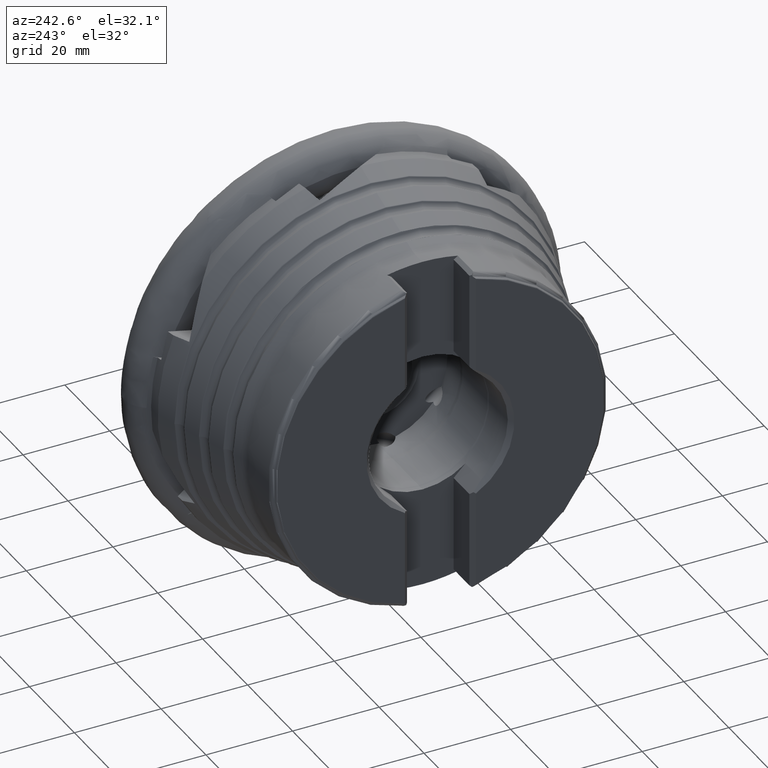
[diagram: clean part render]
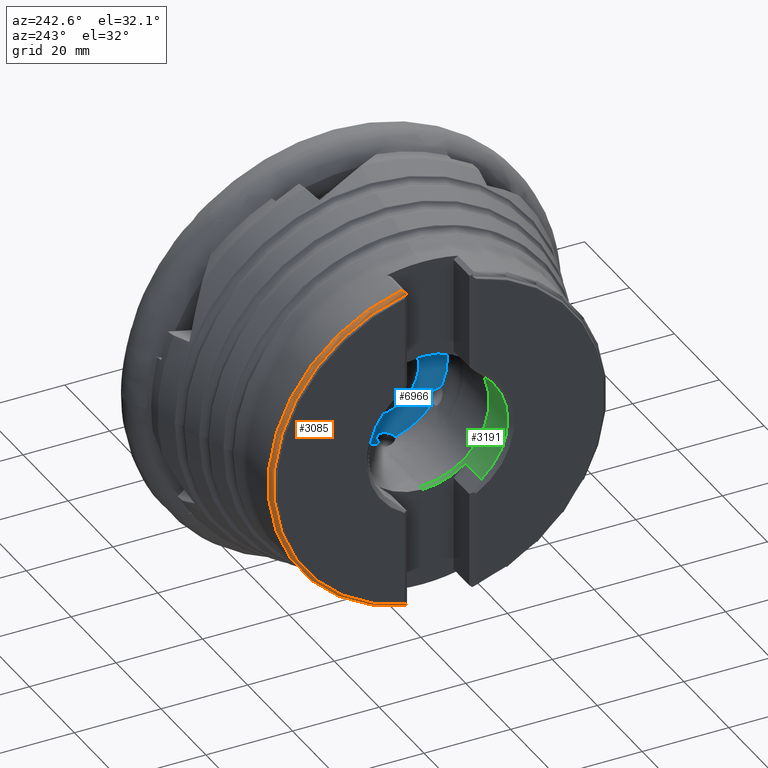
[diagram: same view with three faces highlighted in distinct colors, each labeled with its STEP entity id]
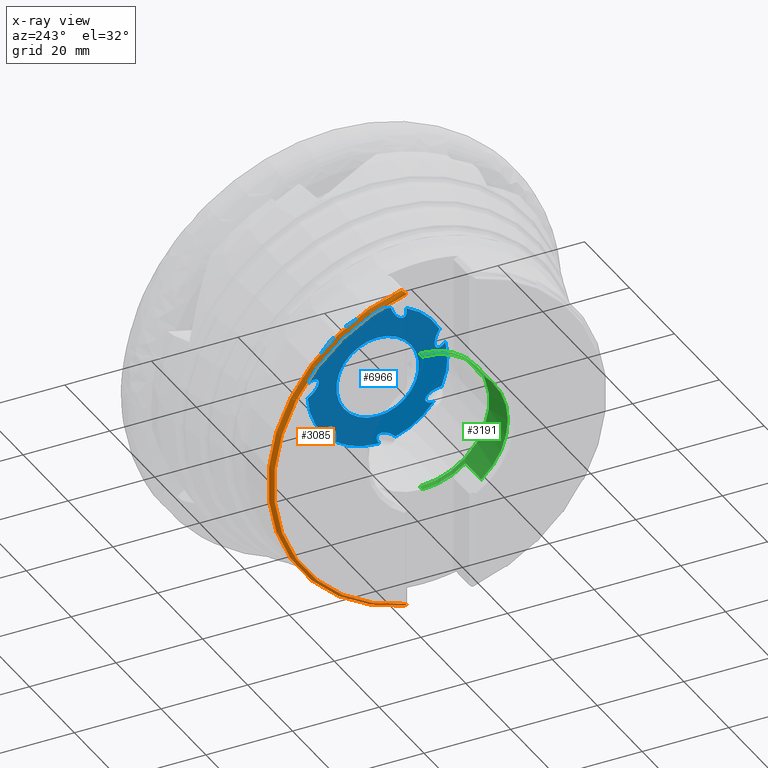
[diagram: x-ray of the same camera — body ghosted, the three highlighted faces saturated]
A machine part, auxiliary view with three faces highlighted in distinct colors.
The next image is the same camera in x-ray (body ghosted, the three faces saturated) — at least one of them is partly hidden behind the body in this view.
Their STEP definitions:

[orange] entity #3085 — the highlighted toroidal blend (fillet) surface has major radius 38 mm and minor (blend) radius 1 mm.
#14 = CARTESIAN_POINT ( 'NONE',  ( -48.12131200690070900, 7.621312006900709900, -37.63629918073279900 ) ) ;
#64 = CARTESIAN_POINT ( 'NONE',  ( -48.17876197310684500, 7.678761973106845500, 37.42537427415211900 ) ) ;
#440 = CARTESIAN_POINT ( 'NONE',  ( -48.03864388107297900, 7.653072297005892600, 37.78281351310798200 ) ) ;
#509 = CARTESIAN_POINT ( 'NONE',  ( -48.07566441285627700, 7.575664412856276000, 37.72988800895827000 ) ) ;
#554 = CARTESIAN_POINT ( 'NONE',  ( -47.99359111119297000, 7.726383029734647900, 37.83293770306460900 ) ) ;
#784 = CARTESIAN_POINT ( 'NONE',  ( -47.89342365490058700, 7.873730037608170900, -37.93368215257812200 ) ) ;
#874 = DIRECTION ( 'NONE',  ( 0.0000000000000000000, 0.0000000000000000000, -1.000000000000000000 ) ) ;
#927 = CARTESIAN_POINT ( 'NONE',  ( -48.15714776707191900, 7.657147767071919000, -37.53515461502402000 ) ) ;
#1115 = B_SPLINE_CURVE_WITH_KNOTS ( 'NONE', 3,
 ( #6120, #6970, #6076, #64 ),
 .UNSPECIFIED., .F., .F.,
 ( 4, 4 ),
 ( 0.0007468856013278042600, 0.001083771706068381600 ),
 .UNSPECIFIED. ) ;
#1648 = ORIENTED_EDGE ( 'NONE', *, *, #7590, .F. ) ;
#1735 = CARTESIAN_POINT ( 'NONE',  ( -48.17876197310684500, 7.678761973106846400, -37.42537427415211900 ) ) ;
#2464 = CARTESIAN_POINT ( 'NONE',  ( -48.07566441285627700, 7.575664412856274200, -37.72988800895827700 ) ) ;
#2620 = AXIS2_PLACEMENT_3D ( 'NONE', #4214, #10142, #874 ) ;
#2862 = B_SPLINE_CURVE_WITH_KNOTS ( 'NONE', 3,
 ( #10062, #10946, #10028, #784, #7569, #2464 ),
 .UNSPECIFIED., .F., .F.,
 ( 4, 2, 4 ),
 ( 0.0000000000000000000, 0.0005977454181976108800, 0.001195490836395221800 ),
 .UNSPECIFIED. ) ;
#3085 = ADVANCED_FACE ( 'NONE', ( #4509 ), #7040, .T. ) ;
#3368 = ORIENTED_EDGE ( 'NONE', *, *, #6787, .F. ) ;
#3663 = AXIS2_PLACEMENT_3D ( 'NONE', #6406, #8169, #3777 ) ;
#3777 = DIRECTION ( 'NONE',  ( 0.0000000000000000000, 0.0000000000000000000, -1.000000000000000000 ) ) ;
#3921 = CARTESIAN_POINT ( 'NONE',  ( -47.19999999999999600, 8.168213455381986100, 38.13502706105394000 ) ) ;
#4001 = EDGE_CURVE ( 'NONE', #7507, #10756, #4628, .T. ) ;
#4012 = VERTEX_POINT ( 'NONE', #4545 ) ;
#4214 = CARTESIAN_POINT ( 'NONE',  ( -47.19999999999999600, 0.0000000000000000000, 0.0000000000000000000 ) ) ;
#4378 = B_SPLINE_CURVE_WITH_KNOTS ( 'NONE', 3,
 ( #1735, #927, #14, #7677 ),
 .UNSPECIFIED., .F., .F.,
 ( 4, 4 ),
 ( 0.001379597850589634500, 0.001716929802340852200 ),
 .UNSPECIFIED. ) ;
#4509 = FACE_OUTER_BOUND ( 'NONE', #8258, .T. ) ;
#4545 = CARTESIAN_POINT ( 'NONE',  ( -48.07566441285627700, 7.575664412856274200, -37.72988800895827700 ) ) ;
#4628 = CIRCLE ( 'NONE', #5903, 38.20499999999999100 ) ;
#4690 = CARTESIAN_POINT ( 'NONE',  ( -47.81982590211012500, 7.928206977193760000, 37.97092925632957600 ) ) ;
#4701 = EDGE_CURVE ( 'NONE', #8599, #4012, #2862, .T. ) ;
#4707 = DIRECTION ( 'NONE',  ( 0.0000000000000000000, 0.0000000000000000000, -1.000000000000000000 ) ) ;
#5012 = ORIENTED_EDGE ( 'NONE', *, *, #5505, .T. ) ;
#5425 = CARTESIAN_POINT ( 'NONE',  ( -48.17876197310684500, 0.0000000000000000000, 0.0000000000000000000 ) ) ;
#5505 = EDGE_CURVE ( 'NONE', #8385, #7373, #6009, .T. ) ;
#5589 = ORIENTED_EDGE ( 'NONE', *, *, #7609, .F. ) ;
#5903 = AXIS2_PLACEMENT_3D ( 'NONE', #5425, #9774, #4707 ) ;
#6009 = B_SPLINE_CURVE_WITH_KNOTS ( 'NONE', 3,
 ( #509, #440, #554, #8936, #4690, #6410, #10019, #7451 ),
 .UNSPECIFIED., .F., .F.,
 ( 4, 2, 2, 4 ),
 ( 0.0000000000000000000, 0.0002976933538340530100, 0.0005953867076681042900, 0.001190773415336209700 ),
 .UNSPECIFIED. ) ;
#6076 = CARTESIAN_POINT ( 'NONE',  ( -48.15736559160017500, 7.657365591600171100, 37.53404826622169600 ) ) ;
#6120 = CARTESIAN_POINT ( 'NONE',  ( -48.07566441285627700, 7.575664412856276000, 37.72988800895827000 ) ) ;
#6307 = ORIENTED_EDGE ( 'NONE', *, *, #4001, .T. ) ;
#6406 = CARTESIAN_POINT ( 'NONE',  ( -47.19999999999999600, 0.0000000000000000000, 0.0000000000000000000 ) ) ;
#6410 = CARTESIAN_POINT ( 'NONE',  ( -47.59615133912146200, 8.094546779027433900, 38.08465950446804300 ) ) ;
#6534 = CARTESIAN_POINT ( 'NONE',  ( -47.19999999999999600, 8.168213455381989600, -38.13502706105394000 ) ) ;
#6787 = EDGE_CURVE ( 'NONE', #7507, #4012, #4378, .T. ) ;
#6827 = CARTESIAN_POINT ( 'NONE',  ( -48.17876197310684500, 7.678761973106845500, 37.42537427415211900 ) ) ;
#6970 = CARTESIAN_POINT ( 'NONE',  ( -48.12086891472552000, 7.620868914725520900, 37.63720762899474400 ) ) ;
#7040 = TOROIDAL_SURFACE ( 'NONE', #3663, 38.00000000000000000, 1.000000000000001300 ) ;
#7373 = VERTEX_POINT ( 'NONE', #3921 ) ;
#7451 = CARTESIAN_POINT ( 'NONE',  ( -47.19999999999999600, 8.168213455381986100, 38.13502706105394000 ) ) ;
#7507 = VERTEX_POINT ( 'NONE', #9348 ) ;
#7569 = CARTESIAN_POINT ( 'NONE',  ( -48.00169255572756600, 7.730335474322115100, -37.83564007795462900 ) ) ;
#7590 = EDGE_CURVE ( 'NONE', #8599, #7373, #10472, .T. ) ;
#7609 = EDGE_CURVE ( 'NONE', #8385, #10756, #1115, .T. ) ;
#7677 = CARTESIAN_POINT ( 'NONE',  ( -48.07566441285627700, 7.575664412856274200, -37.72988800895827700 ) ) ;
#8169 = DIRECTION ( 'NONE',  ( 1.000000000000000000, -0.0000000000000000000, -0.0000000000000000000 ) ) ;
#8258 = EDGE_LOOP ( 'NONE', ( #5589, #5012, #1648, #9403, #3368, #6307 ) ) ;
#8385 = VERTEX_POINT ( 'NONE', #9766 ) ;
#8599 = VERTEX_POINT ( 'NONE', #6534 ) ;
#8936 = CARTESIAN_POINT ( 'NONE',  ( -47.88477444809110800, 7.863460168360352200, 37.92666041295218800 ) ) ;
#9348 = CARTESIAN_POINT ( 'NONE',  ( -48.17876197310684500, 7.678761973106846400, -37.42537427415211900 ) ) ;
#9403 = ORIENTED_EDGE ( 'NONE', *, *, #4701, .T. ) ;
#9766 = CARTESIAN_POINT ( 'NONE',  ( -48.07566441285627700, 7.575664412856276000, 37.72988800895827000 ) ) ;
#9774 = DIRECTION ( 'NONE',  ( 1.000000000000000000, -0.0000000000000000000, -0.0000000000000000000 ) ) ;
#10019 = CARTESIAN_POINT ( 'NONE',  ( -47.40344134507417800, 8.168213455381986100, 38.13502706105391800 ) ) ;
#10028 = CARTESIAN_POINT ( 'NONE',  ( -47.59534915381370700, 8.094886408330465200, -38.08489171662945700 ) ) ;
#10062 = CARTESIAN_POINT ( 'NONE',  ( -47.19999999999999600, 8.168213455381989600, -38.13502706105394000 ) ) ;
#10142 = DIRECTION ( 'NONE',  ( 1.000000000000000000, -0.0000000000000000000, -0.0000000000000000000 ) ) ;
#10472 = CIRCLE ( 'NONE', #2620, 39.00000000000000000 ) ;
#10756 = VERTEX_POINT ( 'NONE', #6827 ) ;
#10946 = CARTESIAN_POINT ( 'NONE',  ( -47.40267689284920000, 8.168213455381984300, -38.13502706105392500 ) ) ;

[blue] entity #6966 — the highlighted planar face has unit normal (1, 0, -0).
#37 = CARTESIAN_POINT ( 'NONE',  ( -20.69999999999999200, 0.0000000000000000000, 0.0000000000000000000 ) ) ;
#113 = CARTESIAN_POINT ( 'NONE',  ( -20.69999999999999900, -6.557511895854514900, 12.62805626548409800 ) ) ;
#136 = CARTESIAN_POINT ( 'NONE',  ( -20.69999999999999900, -11.00150043697961700, -8.643116293427292300 ) ) ;
#227 = CARTESIAN_POINT ( 'NONE',  ( -20.69999999999999900, 6.086209656226995600, 12.89217970522496300 ) ) ;
#250 = ORIENTED_EDGE ( 'NONE', *, *, #947, .T. ) ;
#290 = ORIENTED_EDGE ( 'NONE', *, *, #2462, .T. ) ;
#298 = VERTEX_POINT ( 'NONE', #3068 ) ;
#316 = CARTESIAN_POINT ( 'NONE',  ( -20.69999999999999900, 9.203329640994411400, -10.75591061616868900 ) ) ;
#366 = ORIENTED_EDGE ( 'NONE', *, *, #3603, .T. ) ;
#396 = CARTESIAN_POINT ( 'NONE',  ( -20.69999999999999900, -14.58628110960299500, 3.043947908192531100 ) ) ;
#432 = FACE_OUTER_BOUND ( 'NONE', #2296, .T. ) ;
#499 = DIRECTION ( 'NONE',  ( 1.000000000000000000, -0.0000000000000000000, -0.0000000000000000000 ) ) ;
#543 = DIRECTION ( 'NONE',  ( 1.000000000000000000, -0.0000000000000000000, -0.0000000000000000000 ) ) ;
#618 = VERTEX_POINT ( 'NONE', #10298 ) ;
#625 = CARTESIAN_POINT ( 'NONE',  ( -20.69999999999999200, 15.83000728564748100, 3.198963791034153300 ) ) ;
#733 = DIRECTION ( 'NONE',  ( 1.000000000000000000, -0.0000000000000000000, -0.0000000000000000000 ) ) ;
#782 = CARTESIAN_POINT ( 'NONE',  ( -20.69999999999999200, -14.31942619266970600, 7.468368865601425100 ) ) ;
#793 = CARTESIAN_POINT ( 'NONE',  ( -20.69999999999999900, -14.11416424367319100, 3.043947908192533400 ) ) ;
#844 = DIRECTION ( 'NONE',  ( 0.0000000000000000000, 0.0000000000000000000, -1.000000000000000000 ) ) ;
#845 = CIRCLE ( 'NONE', #5128, 16.14999999999999900 ) ;
#862 = CARTESIAN_POINT ( 'NONE',  ( -20.69999999999999900, -3.854950408814246600, -15.33245018970959500 ) ) ;
#872 = DIRECTION ( 'NONE',  ( 0.0000000000000000000, 0.0000000000000000000, -1.000000000000000000 ) ) ;
#922 = CARTESIAN_POINT ( 'NONE',  ( -20.69999999999999900, -14.76702210140961600, -6.538926384084759600 ) ) ;
#947 = EDGE_CURVE ( 'NONE', #9554, #3790, #6204, .T. ) ;
#1027 = CARTESIAN_POINT ( 'NONE',  ( -20.69999999999999900, -11.00150043697961700, -8.643116293427292300 ) ) ;
#1144 = EDGE_CURVE ( 'NONE', #11007, #10447, #6018, .T. ) ;
#1233 = EDGE_CURVE ( 'NONE', #11007, #10865, #4625, .T. ) ;
#1280 = CARTESIAN_POINT ( 'NONE',  ( -20.69999999999999200, 9.660953397305650700, -12.94173402041196200 ) ) ;
#1362 = AXIS2_PLACEMENT_3D ( 'NONE', #9605, #10560, #8010 ) ;
#1402 = CARTESIAN_POINT ( 'NONE',  ( -20.69999999999999200, 0.0000000000000000000, -16.14999999999999900 ) ) ;
#1405 = CARTESIAN_POINT ( 'NONE',  ( -20.69999999999999900, -14.11416424367319100, 3.043947908192533400 ) ) ;
#1438 = CARTESIAN_POINT ( 'NONE',  ( -20.69999999999999200, 0.0000000000000000000, 0.0000000000000000000 ) ) ;
#1450 = EDGE_CURVE ( 'NONE', #3312, #7046, #3543, .T. ) ;
#1489 = VERTEX_POINT ( 'NONE', #4338 ) ;
#1507 = ORIENTED_EDGE ( 'NONE', *, *, #1718, .F. ) ;
#1513 = EDGE_CURVE ( 'NONE', #8718, #8807, #10144, .T. ) ;
#1529 = CARTESIAN_POINT ( 'NONE',  ( -20.70000000000000600, 0.0000000000000000000, 0.0000000000000000000 ) ) ;
#1551 = CARTESIAN_POINT ( 'NONE',  ( -20.69999999999999900, -0.1874183896374359800, -12.35740923966517900 ) ) ;
#1561 = CARTESIAN_POINT ( 'NONE',  ( -20.70000000000000600, 1.163414459189983900E-015, -9.499999999999987600 ) ) ;
#1618 = ORIENTED_EDGE ( 'NONE', *, *, #3003, .T. ) ;
#1626 = VERTEX_POINT ( 'NONE', #10515 ) ;
#1694 = ORIENTED_EDGE ( 'NONE', *, *, #6064, .T. ) ;
#1710 = ORIENTED_EDGE ( 'NONE', *, *, #6769, .T. ) ;
#1718 = EDGE_CURVE ( 'NONE', #2481, #3469, #2507, .T. ) ;
#1772 = CARTESIAN_POINT ( 'NONE',  ( -20.69999999999999900, -3.261423743238683700, -14.80884670644420900 ) ) ;
#1814 = CARTESIAN_POINT ( 'NONE',  ( -20.70000000000000600, 0.0000000000000000000, 0.0000000000000000000 ) ) ;
#1865 = ORIENTED_EDGE ( 'NONE', *, *, #7405, .F. ) ;
#1918 = EDGE_CURVE ( 'NONE', #7075, #3044, #1967, .T. ) ;
#1967 = CIRCLE ( 'NONE', #4629, 16.14999999999999900 ) ;
#1993 = AXIS2_PLACEMENT_3D ( 'NONE', #2077, #543, #7327 ) ;
#2077 = CARTESIAN_POINT ( 'NONE',  ( -20.69999999999999200, 0.0000000000000000000, 0.0000000000000000000 ) ) ;
#2094 = CIRCLE ( 'NONE', #8814, 9.499999999999987600 ) ;
#2118 = ORIENTED_EDGE ( 'NONE', *, *, #1918, .F. ) ;
#2171 = CARTESIAN_POINT ( 'NONE',  ( -20.69999999999999900, 12.08928770510588700, 2.567062825976854900 ) ) ;
#2230 = CIRCLE ( 'NONE', #10782, 16.14999999999999900 ) ;
#2266 = CARTESIAN_POINT ( 'NONE',  ( -20.69999999999999900, 15.16329305870709900, 0.1156253591977820400 ) ) ;
#2296 = EDGE_LOOP ( 'NONE', ( #1865, #2764, #250, #3531, #366, #7676, #2118, #5819, #6506, #1710, #1507, #7578, #1618, #4019, #7355, #1694, #4283, #8156, #6789, #9202, #6940, #8443, #4856 ) ) ;
#2421 = CARTESIAN_POINT ( 'NONE',  ( -20.69999999999999600, -3.539062203289594000, 14.03184316665894500 ) ) ;
#2462 = EDGE_CURVE ( 'NONE', #4333, #298, #2094, .T. ) ;
#2481 = VERTEX_POINT ( 'NONE', #9442 ) ;
#2507 = CIRCLE ( 'NONE', #9385, 16.14999999999999900 ) ;
#2511 = EDGE_LOOP ( 'NONE', ( #5822, #290 ) ) ;
#2540 = CIRCLE ( 'NONE', #8608, 16.14999999999999900 ) ;
#2581 = DIRECTION ( 'NONE',  ( 1.000000000000000000, -0.0000000000000000000, -0.0000000000000000000 ) ) ;
#2589 = CARTESIAN_POINT ( 'NONE',  ( -20.69999999999999200, 7.368797502844872200, 14.37091936384263300 ) ) ;
#2742 = CARTESIAN_POINT ( 'NONE',  ( -20.69999999999999200, 9.660953397305650700, -12.94173402041196200 ) ) ;
#2759 = VERTEX_POINT ( 'NONE', #9879 ) ;
#2764 = ORIENTED_EDGE ( 'NONE', *, *, #3669, .T. ) ;
#2791 = CARTESIAN_POINT ( 'NONE',  ( -20.69999999999999200, -15.65032211399244800, 3.986215966085988600 ) ) ;
#2818 = CARTESIAN_POINT ( 'NONE',  ( -20.69999999999999900, 8.264210868091650400, 11.28599136841743300 ) ) ;
#2844 = EDGE_CURVE ( 'NONE', #1489, #8381, #2956, .T. ) ;
#2892 = VERTEX_POINT ( 'NONE', #10058 ) ;
#2936 = VERTEX_POINT ( 'NONE', #782 ) ;
#2956 =( BOUNDED_CURVE ( )  B_SPLINE_CURVE ( 3, ( #7347, #5891, #1551, #7610 ),
 .UNSPECIFIED., .F., .T. ) 
 B_SPLINE_CURVE_WITH_KNOTS ( ( 4, 4 ),
 ( 2.056756175316469800, 4.712388980384689700 ),
 .UNSPECIFIED. ) 
 CURVE ( )  GEOMETRIC_REPRESENTATION_ITEM ( )  RATIONAL_B_SPLINE_CURVE ( ( 1.000000000000000000, 0.4937307202314631400, 0.4937307202314631400, 1.000000000000000000 ) ) 
 REPRESENTATION_ITEM ( '' )  );
#2982 = CARTESIAN_POINT ( 'NONE',  ( -20.69999999999999900, 11.04455813069184300, -8.783048658889958600 ) ) ;
#3003 = EDGE_CURVE ( 'NONE', #5716, #10865, #10016, .T. ) ;
#3017 = DIRECTION ( 'NONE',  ( 1.000000000000000000, -0.0000000000000000000, -0.0000000000000000000 ) ) ;
#3044 = VERTEX_POINT ( 'NONE', #2742 ) ;
#3063 = EDGE_CURVE ( 'NONE', #8718, #2892, #11005, .T. ) ;
#3068 = CARTESIAN_POINT ( 'NONE',  ( -20.70000000000000600, 0.0000000000000000000, 9.499999999999987600 ) ) ;
#3170 = DIRECTION ( 'NONE',  ( 1.000000000000000000, -0.0000000000000000000, -0.0000000000000000000 ) ) ;
#3312 = VERTEX_POINT ( 'NONE', #8053 ) ;
#3315 = DIRECTION ( 'NONE',  ( 0.0000000000000000000, 0.0000000000000000000, -1.000000000000000000 ) ) ;
#3359 = CARTESIAN_POINT ( 'NONE',  ( -20.69999999999999900, -3.573499303723008100, -15.05771866125101600 ) ) ;
#3469 = VERTEX_POINT ( 'NONE', #8704 ) ;
#3531 = ORIENTED_EDGE ( 'NONE', *, *, #8893, .F. ) ;
#3543 =( BOUNDED_CURVE ( )  B_SPLINE_CURVE ( 3, ( #7855, #8632, #113, #10330 ),
 .UNSPECIFIED., .F., .F. ) 
 B_SPLINE_CURVE_WITH_KNOTS ( ( 4, 4 ),
 ( 2.056756175316468500, 3.377881931417575400 ),
 .UNSPECIFIED. ) 
 CURVE ( )  GEOMETRIC_REPRESENTATION_ITEM ( )  RATIONAL_B_SPLINE_CURVE ( ( 1.000000000000000000, 0.8597646642332673600, 0.8597646642332673600, 1.000000000000000000 ) ) 
 REPRESENTATION_ITEM ( '' )  );
#3545 = CARTESIAN_POINT ( 'NONE',  ( -20.69999999999999200, 15.83000728564748100, 3.198963791034153300 ) ) ;
#3603 = EDGE_CURVE ( 'NONE', #1626, #4902, #5941, .T. ) ;
#3669 = EDGE_CURVE ( 'NONE', #5030, #9554, #6899, .T. ) ;
#3790 = VERTEX_POINT ( 'NONE', #4334 ) ;
#3821 = CARTESIAN_POINT ( 'NONE',  ( -20.69999999999999900, 12.53940771291623700, 4.648722798029949000 ) ) ;
#3862 = DIRECTION ( 'NONE',  ( 0.0000000000000000000, 0.0000000000000000000, -1.000000000000000000 ) ) ;
#4019 = ORIENTED_EDGE ( 'NONE', *, *, #1233, .F. ) ;
#4140 = CARTESIAN_POINT ( 'NONE',  ( -20.69999999999999200, -14.31942619266970600, 7.468368865601425100 ) ) ;
#4176 = DIRECTION ( 'NONE',  ( 1.000000000000000000, -0.0000000000000000000, -0.0000000000000000000 ) ) ;
#4181 = DIRECTION ( 'NONE',  ( 0.0000000000000000000, 0.0000000000000000000, -1.000000000000000000 ) ) ;
#4279 = DIRECTION ( 'NONE',  ( 1.000000000000000000, -0.0000000000000000000, -0.0000000000000000000 ) ) ;
#4283 = ORIENTED_EDGE ( 'NONE', *, *, #7581, .F. ) ;
#4333 = VERTEX_POINT ( 'NONE', #1561 ) ;
#4334 = CARTESIAN_POINT ( 'NONE',  ( -20.69999999999998500, 16.14176101433816900, -0.5158016634252574600 ) ) ;
#4338 = CARTESIAN_POINT ( 'NONE',  ( -20.69999999999999200, -0.4037489157992363900, -16.14495236329271000 ) ) ;
#4450 = CARTESIAN_POINT ( 'NONE',  ( -20.69999999999999900, 6.086209656226995600, 12.89217970522496300 ) ) ;
#4561 = PLANE ( 'NONE',  #1362 ) ;
#4584 = CARTESIAN_POINT ( 'NONE',  ( -20.69999999999999200, 7.368797502844872200, 14.37091936384263300 ) ) ;
#4625 = CIRCLE ( 'NONE', #7390, 16.14999999999999900 ) ;
#4629 = AXIS2_PLACEMENT_3D ( 'NONE', #37, #2581, #4181 ) ;
#4683 = CARTESIAN_POINT ( 'NONE',  ( -20.69999999999999900, 15.47536861919142100, -0.1332465956090303200 ) ) ;
#4830 = AXIS2_PLACEMENT_3D ( 'NONE', #6007, #4279, #3862 ) ;
#4856 = ORIENTED_EDGE ( 'NONE', *, *, #6508, .T. ) ;
#4892 = CARTESIAN_POINT ( 'NONE',  ( -20.69999999999999900, -12.59748531340704700, 3.043947908192532900 ) ) ;
#4902 = VERTEX_POINT ( 'NONE', #8587 ) ;
#5030 = VERTEX_POINT ( 'NONE', #3545 ) ;
#5032 = CARTESIAN_POINT ( 'NONE',  ( -20.69999999999999200, -4.094749175433086900, -15.62227669676510400 ) ) ;
#5053 = CARTESIAN_POINT ( 'NONE',  ( -20.69999999999998900, -3.089010297787131000, 15.85183003252826200 ) ) ;
#5128 = AXIS2_PLACEMENT_3D ( 'NONE', #7548, #4176, #844 ) ;
#5513 = EDGE_CURVE ( 'NONE', #1489, #7075, #2230, .T. ) ;
#5538 = CARTESIAN_POINT ( 'NONE',  ( -20.69999999999999900, 6.549440582607243900, 13.94163288233517200 ) ) ;
#5716 = VERTEX_POINT ( 'NONE', #10044 ) ;
#5778 = DIRECTION ( 'NONE',  ( 1.000000000000000000, -0.0000000000000000000, -0.0000000000000000000 ) ) ;
#5792 = CARTESIAN_POINT ( 'NONE',  ( -20.69999999999999200, 0.0000000000000000000, 0.0000000000000000000 ) ) ;
#5819 = ORIENTED_EDGE ( 'NONE', *, *, #5513, .F. ) ;
#5822 = ORIENTED_EDGE ( 'NONE', *, *, #9110, .T. ) ;
#5891 = CARTESIAN_POINT ( 'NONE',  ( -20.69999999999999900, 1.741888896258386500, -13.25945672027169800 ) ) ;
#5939 = CARTESIAN_POINT ( 'NONE',  ( -20.69999999999999900, -5.787441827310458600, 12.62805626548409800 ) ) ;
#5941 =( BOUNDED_CURVE ( )  B_SPLINE_CURVE ( 3, ( #6198, #7898, #10448, #8815 ),
 .UNSPECIFIED., .F., .T. ) 
 B_SPLINE_CURVE_WITH_KNOTS ( ( 4, 4 ),
 ( 2.056756175316468900, 3.141592653589793100 ),
 .UNSPECIFIED. ) 
 CURVE ( )  GEOMETRIC_REPRESENTATION_ITEM ( )  RATIONAL_B_SPLINE_CURVE ( ( 1.000000000000000000, 0.9043085806075332700, 0.9043085806075332700, 1.000000000000000000 ) ) 
 REPRESENTATION_ITEM ( '' )  );
#6007 = CARTESIAN_POINT ( 'NONE',  ( -20.69999999999999200, 0.0000000000000000000, 0.0000000000000000000 ) ) ;
#6018 =( BOUNDED_CURVE ( )  B_SPLINE_CURVE ( 3, ( #2791, #8741, #396, #1405 ),
 .UNSPECIFIED., .F., .T. ) 
 B_SPLINE_CURVE_WITH_KNOTS ( ( 4, 4 ),
 ( 2.056756175316469400, 2.905303375762019700 ),
 .UNSPECIFIED. ) 
 CURVE ( )  GEOMETRIC_REPRESENTATION_ITEM ( )  RATIONAL_B_SPLINE_CURVE ( ( 1.000000000000000000, 0.9408920015292610000, 0.9408920015292610000, 1.000000000000000000 ) ) 
 REPRESENTATION_ITEM ( '' )  );
#6064 = EDGE_CURVE ( 'NONE', #10447, #2936, #8465, .T. ) ;
#6150 = CARTESIAN_POINT ( 'NONE',  ( -20.69999999999999900, -11.00150043697961900, -9.293437259800780800 ) ) ;
#6198 = CARTESIAN_POINT ( 'NONE',  ( -20.69999999999999200, 12.37089870905654500, -10.38187676339220600 ) ) ;
#6204 =( BOUNDED_CURVE ( )  B_SPLINE_CURVE ( 3, ( #2266, #4683, #10753, #10605 ),
 .UNSPECIFIED., .F., .T. ) 
 B_SPLINE_CURVE_WITH_KNOTS ( ( 4, 4 ),
 ( 4.712388980384689700, 5.108928229292813800 ),
 .UNSPECIFIED. ) 
 CURVE ( )  GEOMETRIC_REPRESENTATION_ITEM ( )  RATIONAL_B_SPLINE_CURVE ( ( 1.000000000000000000, 0.9869392553095641700, 0.9869392553095641700, 1.000000000000000000 ) ) 
 REPRESENTATION_ITEM ( '' )  );
#6251 = EDGE_CURVE ( 'NONE', #2481, #5716, #6502, .T. ) ;
#6320 = CARTESIAN_POINT ( 'NONE',  ( -20.69999999999999900, 9.859705612031898900, -8.783048658889960300 ) ) ;
#6366 = EDGE_CURVE ( 'NONE', #7046, #618, #9459, .T. ) ;
#6502 =( BOUNDED_CURVE ( )  B_SPLINE_CURVE ( 3, ( #8438, #7768, #6150, #136 ),
 .UNSPECIFIED., .F., .F. ) 
 B_SPLINE_CURVE_WITH_KNOTS ( ( 4, 4 ),
 ( 2.056756175316468000, 3.255222794778465500 ),
 .UNSPECIFIED. ) 
 CURVE ( )  GEOMETRIC_REPRESENTATION_ITEM ( )  RATIONAL_B_SPLINE_CURVE ( ( 1.000000000000000000, 0.8838455187901292900, 0.8838455187901292900, 1.000000000000000000 ) ) 
 REPRESENTATION_ITEM ( '' )  );
#6506 = ORIENTED_EDGE ( 'NONE', *, *, #2844, .T. ) ;
#6508 = EDGE_CURVE ( 'NONE', #8807, #2759, #7530, .T. ) ;
#6653 = DIRECTION ( 'NONE',  ( 0.0000000000000000000, 0.0000000000000000000, -1.000000000000000000 ) ) ;
#6769 = EDGE_CURVE ( 'NONE', #8381, #3469, #10469, .T. ) ;
#6789 = ORIENTED_EDGE ( 'NONE', *, *, #6366, .T. ) ;
#6899 =( BOUNDED_CURVE ( )  B_SPLINE_CURVE ( 3, ( #625, #3821, #2171, #8127 ),
 .UNSPECIFIED., .F., .T. ) 
 B_SPLINE_CURVE_WITH_KNOTS ( ( 4, 4 ),
 ( 2.056756175316469800, 4.712388980384689700 ),
 .UNSPECIFIED. ) 
 CURVE ( )  GEOMETRIC_REPRESENTATION_ITEM ( )  RATIONAL_B_SPLINE_CURVE ( ( 1.000000000000000000, 0.4937307202314631400, 0.4937307202314631400, 1.000000000000000000 ) ) 
 REPRESENTATION_ITEM ( '' )  );
#6940 = ORIENTED_EDGE ( 'NONE', *, *, #3063, .F. ) ;
#6944 = CIRCLE ( 'NONE', #1993, 16.14999999999999900 ) ;
#6966 = ADVANCED_FACE ( 'NONE', ( #432, #10770 ), #4561, .F. ) ;
#6995 = EDGE_CURVE ( 'NONE', #4902, #3044, #7859, .T. ) ;
#7046 = VERTEX_POINT ( 'NONE', #8813 ) ;
#7075 = VERTEX_POINT ( 'NONE', #1402 ) ;
#7130 = EDGE_CURVE ( 'NONE', #2892, #618, #2540, .T. ) ;
#7243 = CARTESIAN_POINT ( 'NONE',  ( -20.69999999999999900, 6.086209656226995600, 12.89217970522496300 ) ) ;
#7327 = DIRECTION ( 'NONE',  ( 0.0000000000000000000, 0.0000000000000000000, -1.000000000000000000 ) ) ;
#7347 = CARTESIAN_POINT ( 'NONE',  ( -20.69999999999999200, -0.4037489157992363900, -16.14495236329271000 ) ) ;
#7355 = ORIENTED_EDGE ( 'NONE', *, *, #1144, .T. ) ;
#7390 = AXIS2_PLACEMENT_3D ( 'NONE', #10827, #5778, #3315 ) ;
#7405 = EDGE_CURVE ( 'NONE', #5030, #2759, #10900, .T. ) ;
#7471 = DIRECTION ( 'NONE',  ( 1.000000000000000000, -0.0000000000000000000, -0.0000000000000000000 ) ) ;
#7519 = CARTESIAN_POINT ( 'NONE',  ( -20.69999999999999600, -4.714089704780567700, 12.62805626548409800 ) ) ;
#7530 =( BOUNDED_CURVE ( )  B_SPLINE_CURVE ( 3, ( #227, #8834, #2818, #9594 ),
 .UNSPECIFIED., .F., .F. ) 
 B_SPLINE_CURVE_WITH_KNOTS ( ( 4, 4 ),
 ( 3.027962512401128700, 5.108928229292814600 ),
 .UNSPECIFIED. ) 
 CURVE ( )  GEOMETRIC_REPRESENTATION_ITEM ( )  RATIONAL_B_SPLINE_CURVE ( ( 1.000000000000000000, 0.6705358527139351200, 0.6705358527139351200, 1.000000000000000000 ) ) 
 REPRESENTATION_ITEM ( '' )  );
#7548 = CARTESIAN_POINT ( 'NONE',  ( -20.69999999999999200, 0.0000000000000000000, 0.0000000000000000000 ) ) ;
#7578 = ORIENTED_EDGE ( 'NONE', *, *, #6251, .T. ) ;
#7581 = EDGE_CURVE ( 'NONE', #3312, #2936, #845, .T. ) ;
#7610 = CARTESIAN_POINT ( 'NONE',  ( -20.69999999999999900, -3.261423743238683700, -14.80884670644420900 ) ) ;
#7676 = ORIENTED_EDGE ( 'NONE', *, *, #6995, .T. ) ;
#7726 = CARTESIAN_POINT ( 'NONE',  ( -20.69999999999999200, -15.65032211399244800, 3.986215966085988600 ) ) ;
#7768 = CARTESIAN_POINT ( 'NONE',  ( -20.69999999999999900, -11.70783236764902200, -9.711094425618819400 ) ) ;
#7855 = CARTESIAN_POINT ( 'NONE',  ( -20.69999999999999200, -6.641267095675768700, 14.72127954234598100 ) ) ;
#7859 =( BOUNDED_CURVE ( )  B_SPLINE_CURVE ( 3, ( #2982, #6320, #316, #1280 ),
 .UNSPECIFIED., .F., .F. ) 
 B_SPLINE_CURVE_WITH_KNOTS ( ( 4, 4 ),
 ( 3.141592653589793100, 5.108928229292815500 ),
 .UNSPECIFIED. ) 
 CURVE ( )  GEOMETRIC_REPRESENTATION_ITEM ( )  RATIONAL_B_SPLINE_CURVE ( ( 1.000000000000000000, 0.7026484791428405700, 0.7026484791428405700, 1.000000000000000000 ) ) 
 REPRESENTATION_ITEM ( '' )  );
#7898 = CARTESIAN_POINT ( 'NONE',  ( -20.69999999999999900, 12.10428727371096300, -9.372385875111778100 ) ) ;
#8010 = DIRECTION ( 'NONE',  ( -0.0000000000000000000, 0.0000000000000000000, -1.000000000000000000 ) ) ;
#8053 = CARTESIAN_POINT ( 'NONE',  ( -20.69999999999999200, -6.641267095675768700, 14.72127954234598100 ) ) ;
#8127 = CARTESIAN_POINT ( 'NONE',  ( -20.69999999999999900, 15.16329305870709900, 0.1156253591977820400 ) ) ;
#8156 = ORIENTED_EDGE ( 'NONE', *, *, #1450, .T. ) ;
#8235 = CARTESIAN_POINT ( 'NONE',  ( -20.69999999999999200, 0.0000000000000000000, 0.0000000000000000000 ) ) ;
#8381 = VERTEX_POINT ( 'NONE', #9698 ) ;
#8438 = CARTESIAN_POINT ( 'NONE',  ( -20.69999999999999200, -12.87436537208123300, -9.750549536623854200 ) ) ;
#8443 = ORIENTED_EDGE ( 'NONE', *, *, #1513, .T. ) ;
#8465 =( BOUNDED_CURVE ( )  B_SPLINE_CURVE ( 3, ( #793, #4892, #9232, #4140 ),
 .UNSPECIFIED., .F., .F. ) 
 B_SPLINE_CURVE_WITH_KNOTS ( ( 4, 4 ),
 ( 2.905303375762019700, 5.108928229292815500 ),
 .UNSPECIFIED. ) 
 CURVE ( )  GEOMETRIC_REPRESENTATION_ITEM ( )  RATIONAL_B_SPLINE_CURVE ( ( 1.000000000000000000, 0.6346534194868976900, 0.6346534194868976900, 1.000000000000000000 ) ) 
 REPRESENTATION_ITEM ( '' )  );
#8587 = CARTESIAN_POINT ( 'NONE',  ( -20.69999999999999900, 11.04455813069184300, -8.783048658889958600 ) ) ;
#8608 = AXIS2_PLACEMENT_3D ( 'NONE', #8993, #3017, #8965 ) ;
#8632 = CARTESIAN_POINT ( 'NONE',  ( -20.69999999999999900, -6.888542507635057700, 13.43960519429421100 ) ) ;
#8704 = CARTESIAN_POINT ( 'NONE',  ( -20.69999999999999200, -4.094749175433086900, -15.62227669676510400 ) ) ;
#8718 = VERTEX_POINT ( 'NONE', #2589 ) ;
#8741 = CARTESIAN_POINT ( 'NONE',  ( -20.69999999999999900, -15.13050151174000900, 3.377768742167790900 ) ) ;
#8807 = VERTEX_POINT ( 'NONE', #4450 ) ;
#8813 = CARTESIAN_POINT ( 'NONE',  ( -20.69999999999999900, -5.787441827310458600, 12.62805626548409800 ) ) ;
#8814 = AXIS2_PLACEMENT_3D ( 'NONE', #1814, #10172, #872 ) ;
#8815 = CARTESIAN_POINT ( 'NONE',  ( -20.69999999999999900, 11.04455813069184300, -8.783048658889958600 ) ) ;
#8834 = CARTESIAN_POINT ( 'NONE',  ( -20.69999999999999900, 6.086209656226998300, 11.58109855086213200 ) ) ;
#8893 = EDGE_CURVE ( 'NONE', #1626, #3790, #6944, .T. ) ;
#8965 = DIRECTION ( 'NONE',  ( 0.0000000000000000000, 0.0000000000000000000, -1.000000000000000000 ) ) ;
#8993 = CARTESIAN_POINT ( 'NONE',  ( -20.69999999999999200, 0.0000000000000000000, 0.0000000000000000000 ) ) ;
#9110 = EDGE_CURVE ( 'NONE', #298, #4333, #10227, .T. ) ;
#9164 = AXIS2_PLACEMENT_3D ( 'NONE', #5792, #733, #6653 ) ;
#9202 = ORIENTED_EDGE ( 'NONE', *, *, #7130, .F. ) ;
#9232 = CARTESIAN_POINT ( 'NONE',  ( -20.69999999999999900, -12.70529320912565800, 5.367746914893403200 ) ) ;
#9274 = CARTESIAN_POINT ( 'NONE',  ( -20.69999999999999900, -14.76702210140961600, -6.538926384084759600 ) ) ;
#9385 = AXIS2_PLACEMENT_3D ( 'NONE', #8235, #499, #9861 ) ;
#9388 = CARTESIAN_POINT ( 'NONE',  ( -20.70000000000000300, -12.71255063693925700, -6.575952850269818100 ) ) ;
#9442 = CARTESIAN_POINT ( 'NONE',  ( -20.69999999999999200, -12.87436537208123300, -9.750549536623854200 ) ) ;
#9459 =( BOUNDED_CURVE ( )  B_SPLINE_CURVE ( 3, ( #5939, #7519, #2421, #5053 ),
 .UNSPECIFIED., .F., .F. ) 
 B_SPLINE_CURVE_WITH_KNOTS ( ( 4, 4 ),
 ( 3.377881931417575400, 5.108928229292816400 ),
 .UNSPECIFIED. ) 
 CURVE ( )  GEOMETRIC_REPRESENTATION_ITEM ( )  RATIONAL_B_SPLINE_CURVE ( ( 1.000000000000000000, 0.7654945738431162500, 0.7654945738431162500, 1.000000000000000000 ) ) 
 REPRESENTATION_ITEM ( '' )  );
#9535 = CARTESIAN_POINT ( 'NONE',  ( -20.69999999999999900, -14.11416424367319100, 3.043947908192533400 ) ) ;
#9554 = VERTEX_POINT ( 'NONE', #9757 ) ;
#9594 = CARTESIAN_POINT ( 'NONE',  ( -20.69999999999999600, 10.46749335565594500, 12.29853986655727000 ) ) ;
#9605 = CARTESIAN_POINT ( 'NONE',  ( -20.69999999999999900, 9.499999999999987600, 0.0000000000000000000 ) ) ;
#9698 = CARTESIAN_POINT ( 'NONE',  ( -20.69999999999999900, -3.261423743238683700, -14.80884670644420900 ) ) ;
#9709 = CARTESIAN_POINT ( 'NONE',  ( -20.69999999999999900, 6.086209656226996500, 13.40755800883392500 ) ) ;
#9757 = CARTESIAN_POINT ( 'NONE',  ( -20.69999999999999900, 15.16329305870709900, 0.1156253591977820400 ) ) ;
#9861 = DIRECTION ( 'NONE',  ( 0.0000000000000000000, 0.0000000000000000000, -1.000000000000000000 ) ) ;
#9879 = CARTESIAN_POINT ( 'NONE',  ( -20.69999999999999600, 10.46749335565594500, 12.29853986655727000 ) ) ;
#9947 = AXIS2_PLACEMENT_3D ( 'NONE', #1529, #7471, #10843 ) ;
#10016 =( BOUNDED_CURVE ( )  B_SPLINE_CURVE ( 3, ( #1027, #10195, #9388, #922 ),
 .UNSPECIFIED., .F., .T. ) 
 B_SPLINE_CURVE_WITH_KNOTS ( ( 4, 4 ),
 ( 3.255222794778465500, 5.108928229292814600 ),
 .UNSPECIFIED. ) 
 CURVE ( )  GEOMETRIC_REPRESENTATION_ITEM ( )  RATIONAL_B_SPLINE_CURVE ( ( 1.000000000000000000, 0.7335692945612839500, 0.7335692945612839500, 1.000000000000000000 ) ) 
 REPRESENTATION_ITEM ( '' )  );
#10044 = CARTESIAN_POINT ( 'NONE',  ( -20.69999999999999900, -11.00150043697961700, -8.643116293427292300 ) ) ;
#10058 = CARTESIAN_POINT ( 'NONE',  ( -20.69999999999999200, 1.977804580622975200E-015, 16.14999999999999900 ) ) ;
#10144 =( BOUNDED_CURVE ( )  B_SPLINE_CURVE ( 3, ( #4584, #5538, #9709, #7243 ),
 .UNSPECIFIED., .F., .F. ) 
 B_SPLINE_CURVE_WITH_KNOTS ( ( 4, 4 ),
 ( 2.056756175316468500, 3.027962512401128700 ),
 .UNSPECIFIED. ) 
 CURVE ( )  GEOMETRIC_REPRESENTATION_ITEM ( )  RATIONAL_B_SPLINE_CURVE ( ( 1.000000000000000000, 0.9229290573207888900, 0.9229290573207888900, 1.000000000000000000 ) ) 
 REPRESENTATION_ITEM ( '' )  );
#10172 = DIRECTION ( 'NONE',  ( 1.000000000000000000, -0.0000000000000000000, -0.0000000000000000000 ) ) ;
#10195 = CARTESIAN_POINT ( 'NONE',  ( -20.70000000000000300, -11.00150043697962100, -7.532095155635781600 ) ) ;
#10227 = CIRCLE ( 'NONE', #9947, 9.499999999999987600 ) ;
#10298 = CARTESIAN_POINT ( 'NONE',  ( -20.69999999999998900, -3.089010297787131000, 15.85183003252826200 ) ) ;
#10330 = CARTESIAN_POINT ( 'NONE',  ( -20.69999999999999900, -5.787441827310458600, 12.62805626548409800 ) ) ;
#10447 = VERTEX_POINT ( 'NONE', #9535 ) ;
#10448 = CARTESIAN_POINT ( 'NONE',  ( -20.69999999999999900, 11.61539052363860900, -8.783048658889958600 ) ) ;
#10469 =( BOUNDED_CURVE ( )  B_SPLINE_CURVE ( 3, ( #1772, #3359, #862, #5032 ),
 .UNSPECIFIED., .F., .F. ) 
 B_SPLINE_CURVE_WITH_KNOTS ( ( 4, 4 ),
 ( 4.712388980384689700, 5.108928229292815500 ),
 .UNSPECIFIED. ) 
 CURVE ( )  GEOMETRIC_REPRESENTATION_ITEM ( )  RATIONAL_B_SPLINE_CURVE ( ( 1.000000000000000000, 0.9869392553095638300, 0.9869392553095638300, 1.000000000000000000 ) ) 
 REPRESENTATION_ITEM ( '' )  );
#10515 = CARTESIAN_POINT ( 'NONE',  ( -20.69999999999999200, 12.37089870905654500, -10.38187676339220600 ) ) ;
#10560 = DIRECTION ( 'NONE',  ( 1.000000000000000000, 0.0000000000000000000, -0.0000000000000000000 ) ) ;
#10605 = CARTESIAN_POINT ( 'NONE',  ( -20.69999999999998500, 16.14176101433816900, -0.5158016634252574600 ) ) ;
#10753 = CARTESIAN_POINT ( 'NONE',  ( -20.69999999999999900, 15.80584081740999600, -0.3465076175770536200 ) ) ;
#10770 = FACE_BOUND ( 'NONE', #2511, .T. ) ;
#10782 = AXIS2_PLACEMENT_3D ( 'NONE', #1438, #3170, #10798 ) ;
#10798 = DIRECTION ( 'NONE',  ( 0.0000000000000000000, 0.0000000000000000000, -1.000000000000000000 ) ) ;
#10827 = CARTESIAN_POINT ( 'NONE',  ( -20.69999999999999200, 0.0000000000000000000, 0.0000000000000000000 ) ) ;
#10843 = DIRECTION ( 'NONE',  ( 0.0000000000000000000, 0.0000000000000000000, -1.000000000000000000 ) ) ;
#10865 = VERTEX_POINT ( 'NONE', #9274 ) ;
#10900 = CIRCLE ( 'NONE', #9164, 16.14999999999999900 ) ;
#11005 = CIRCLE ( 'NONE', #4830, 16.14999999999999900 ) ;
#11007 = VERTEX_POINT ( 'NONE', #7726 ) ;

[green] entity #3191 — the highlighted cylindrical surface (partial cylindrical patch) has radius 16.075 mm, axis along (1, -0, -0).
#278 = CARTESIAN_POINT ( 'NONE',  ( 0.0000000000000000000, 1.968619729629369600E-015, 16.07499999999999600 ) ) ;
#301 = ORIENTED_EDGE ( 'NONE', *, *, #9053, .T. ) ;
#319 = ORIENTED_EDGE ( 'NONE', *, *, #4352, .F. ) ;
#418 = DIRECTION ( 'NONE',  ( 0.0000000000000000000, 0.0000000000000000000, -1.000000000000000000 ) ) ;
#628 = ORIENTED_EDGE ( 'NONE', *, *, #3566, .T. ) ;
#779 = VERTEX_POINT ( 'NONE', #8808 ) ;
#1106 = CARTESIAN_POINT ( 'NONE',  ( -1.066362753640269200E-029, -9.935416916540468400, -12.63697415105852600 ) ) ;
#1153 = EDGE_CURVE ( 'NONE', #4256, #3231, #7164, .T. ) ;
#1174 = AXIS2_PLACEMENT_3D ( 'NONE', #8085, #2985, #3827 ) ;
#1242 = ORIENTED_EDGE ( 'NONE', *, *, #1153, .T. ) ;
#1350 = FACE_OUTER_BOUND ( 'NONE', #2690, .T. ) ;
#1456 = ORIENTED_EDGE ( 'NONE', *, *, #8095, .T. ) ;
#1545 = CARTESIAN_POINT ( 'NONE',  ( -40.69999999999999600, 0.0000000000000000000, -16.07499999999999600 ) ) ;
#1845 = VERTEX_POINT ( 'NONE', #10938 ) ;
#2522 = ORIENTED_EDGE ( 'NONE', *, *, #8983, .T. ) ;
#2641 = CIRCLE ( 'NONE', #3820, 16.07499999999999600 ) ;
#2690 = EDGE_LOOP ( 'NONE', ( #1242, #628, #3157, #319, #2522, #1456, #6681, #301 ) ) ;
#2972 = CARTESIAN_POINT ( 'NONE',  ( -39.44999999999998900, 0.0000000000000000000, 0.0000000000000000000 ) ) ;
#2985 = DIRECTION ( 'NONE',  ( -1.000000000000000000, -0.0000000000000000000, -0.0000000000000000000 ) ) ;
#3066 = CYLINDRICAL_SURFACE ( 'NONE', #10347, 16.07499999999999600 ) ;
#3157 = ORIENTED_EDGE ( 'NONE', *, *, #4070, .T. ) ;
#3165 = DIRECTION ( 'NONE',  ( 0.0000000000000000000, 0.0000000000000000000, -1.000000000000000000 ) ) ;
#3191 = ADVANCED_FACE ( 'NONE', ( #1350 ), #3066, .F. ) ;
#3231 = VERTEX_POINT ( 'NONE', #8272 ) ;
#3468 = CIRCLE ( 'NONE', #5979, 16.07499999999999600 ) ;
#3566 = EDGE_CURVE ( 'NONE', #3231, #11003, #7025, .T. ) ;
#3752 = DIRECTION ( 'NONE',  ( 0.0000000000000000000, 0.0000000000000000000, -1.000000000000000000 ) ) ;
#3820 = AXIS2_PLACEMENT_3D ( 'NONE', #2972, #7994, #418 ) ;
#3827 = DIRECTION ( 'NONE',  ( 0.0000000000000000000, 1.776356839400250500E-015, -1.000000000000000000 ) ) ;
#3864 = LINE ( 'NONE', #3955, #9439 ) ;
#3955 = CARTESIAN_POINT ( 'NONE',  ( -8.612929933248332800E-030, -9.935416916540479100, 12.63697415105851200 ) ) ;
#4070 = EDGE_CURVE ( 'NONE', #11003, #779, #2641, .T. ) ;
#4256 = VERTEX_POINT ( 'NONE', #9088 ) ;
#4352 = EDGE_CURVE ( 'NONE', #5533, #779, #7969, .T. ) ;
#4605 = CARTESIAN_POINT ( 'NONE',  ( -47.69999999999999600, 0.0000000000000000000, 0.0000000000000000000 ) ) ;
#4864 = CARTESIAN_POINT ( 'NONE',  ( -40.69999999999999600, 0.0000000000000000000, 0.0000000000000000000 ) ) ;
#5220 = CIRCLE ( 'NONE', #7907, 16.07499999999999600 ) ;
#5241 = VERTEX_POINT ( 'NONE', #8189 ) ;
#5518 = DIRECTION ( 'NONE',  ( 1.000000000000000000, -0.0000000000000000000, -0.0000000000000000000 ) ) ;
#5533 = VERTEX_POINT ( 'NONE', #1545 ) ;
#5733 = DIRECTION ( 'NONE',  ( 0.0000000000000000000, 0.0000000000000000000, -1.000000000000000000 ) ) ;
#5979 = AXIS2_PLACEMENT_3D ( 'NONE', #4605, #10619, #3752 ) ;
#6291 = CARTESIAN_POINT ( 'NONE',  ( -47.69999999999999600, -9.935416916540511100, 12.63697415105849400 ) ) ;
#6641 = VECTOR ( 'NONE', #6939, 1000.000000000000000 ) ;
#6681 = ORIENTED_EDGE ( 'NONE', *, *, #9504, .F. ) ;
#6722 = CARTESIAN_POINT ( 'NONE',  ( 0.0000000000000000000, 0.0000000000000000000, -16.07499999999999600 ) ) ;
#6930 = DIRECTION ( 'NONE',  ( -1.000000000000000000, 0.0000000000000000000, 0.0000000000000000000 ) ) ;
#6939 = DIRECTION ( 'NONE',  ( 1.000000000000000000, -0.0000000000000000000, -0.0000000000000000000 ) ) ;
#7025 = LINE ( 'NONE', #278, #10326 ) ;
#7164 = CIRCLE ( 'NONE', #1174, 16.07499999999999600 ) ;
#7739 = VECTOR ( 'NONE', #6930, 1000.000000000000000 ) ;
#7907 = AXIS2_PLACEMENT_3D ( 'NONE', #4864, #9980, #5733 ) ;
#7969 = LINE ( 'NONE', #6722, #6641 ) ;
#7994 = DIRECTION ( 'NONE',  ( 1.000000000000000000, -0.0000000000000000000, -0.0000000000000000000 ) ) ;
#8085 = CARTESIAN_POINT ( 'NONE',  ( -40.69999999999999600, 0.0000000000000000000, 0.0000000000000000000 ) ) ;
#8095 = EDGE_CURVE ( 'NONE', #1845, #5241, #10100, .T. ) ;
#8139 = VERTEX_POINT ( 'NONE', #6291 ) ;
#8189 = CARTESIAN_POINT ( 'NONE',  ( -47.69999999999999600, -9.935416916540525300, -12.63697415105848200 ) ) ;
#8272 = CARTESIAN_POINT ( 'NONE',  ( -40.69999999999999600, 1.968619729629369600E-015, 16.07499999999999600 ) ) ;
#8568 = CARTESIAN_POINT ( 'NONE',  ( -39.44999999999998900, 0.0000000000000000000, 16.07499999999999600 ) ) ;
#8808 = CARTESIAN_POINT ( 'NONE',  ( -39.44999999999998900, 1.968619729629369600E-015, -16.07499999999999600 ) ) ;
#8930 = DIRECTION ( 'NONE',  ( 1.000000000000000000, -0.0000000000000000000, -0.0000000000000000000 ) ) ;
#8983 = EDGE_CURVE ( 'NONE', #5533, #1845, #5220, .T. ) ;
#9053 = EDGE_CURVE ( 'NONE', #8139, #4256, #3864, .T. ) ;
#9088 = CARTESIAN_POINT ( 'NONE',  ( -40.69999999999999600, -9.935416916540496900, 12.63697415105850500 ) ) ;
#9439 = VECTOR ( 'NONE', #10676, 1000.000000000000000 ) ;
#9504 = EDGE_CURVE ( 'NONE', #8139, #5241, #3468, .T. ) ;
#9721 = CARTESIAN_POINT ( 'NONE',  ( 0.0000000000000000000, 0.0000000000000000000, 0.0000000000000000000 ) ) ;
#9980 = DIRECTION ( 'NONE',  ( -1.000000000000000000, -0.0000000000000000000, -0.0000000000000000000 ) ) ;
#10100 = LINE ( 'NONE', #1106, #7739 ) ;
#10326 = VECTOR ( 'NONE', #5518, 1000.000000000000000 ) ;
#10347 = AXIS2_PLACEMENT_3D ( 'NONE', #9721, #8930, #3165 ) ;
#10619 = DIRECTION ( 'NONE',  ( 1.000000000000000000, -0.0000000000000000000, -0.0000000000000000000 ) ) ;
#10676 = DIRECTION ( 'NONE',  ( 1.000000000000000000, -0.0000000000000000000, -0.0000000000000000000 ) ) ;
#10938 = CARTESIAN_POINT ( 'NONE',  ( -40.69999999999999600, -9.935416916540482600, -12.63697415105851400 ) ) ;
#11003 = VERTEX_POINT ( 'NONE', #8568 ) ;